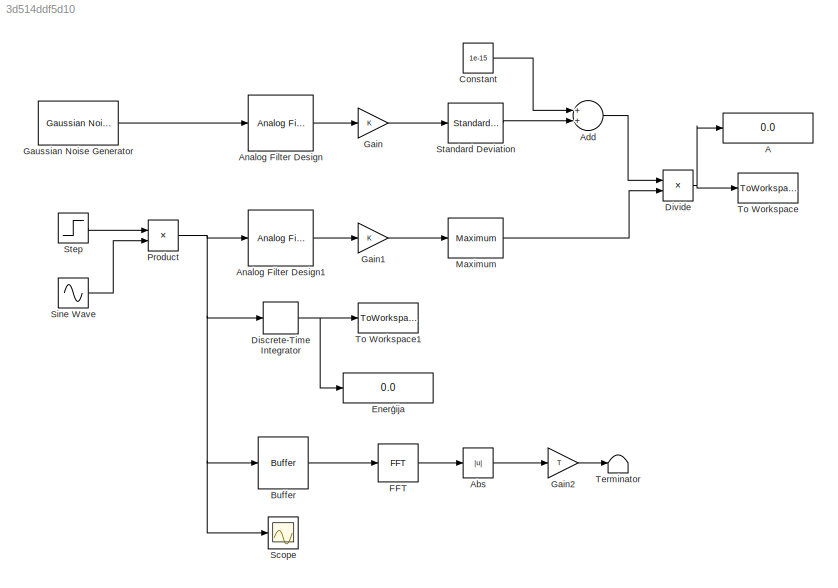
MODEL slx_3d514ddf5d10
KIND model
BLOCK [Display] A
  Decimation = 1
  Ports = [1]
BLOCK [Abs] Abs
  SaturateOnIntegerOverflow = off
BLOCK [Sum] Add
  InputSameDT = off
  OutDataTypeStr = Inherit: Inherit via internal rule
  Ports = [2, 1]
  SaturateOnIntegerOverflow = off
BLOCK [Reference] Analog Filter Design  REF=dsparch4/Analog
Filter Design
  N = 1
  Ports = [1, 1]
  Rp = 2
  Rs = 40
  SourceBlock = dsparch4/Analog\nFilter Design
  SourceType = Analog Filter Design
  Whi = 80
  Wlo = 2.63632
  filttype = Lowpass
  method = Butterworth
BLOCK [Reference] Analog Filter Design1  REF=dsparch4/Analog
Filter Design
  N = 1
  Ports = [1, 1]
  Rp = 2
  Rs = 40
  SourceBlock = dsparch4/Analog\nFilter Design
  SourceType = Analog Filter Design
  Whi = 80
  Wlo = 2.63632
  filttype = Lowpass
  method = Butterworth
BLOCK [Buffer] Buffer
  N = samples
  TreatMby1Signals = One channel
BLOCK [Constant] Constant
  SampleTime = dt
  Value = 1e-15
BLOCK [DiscreteIntegrator] Discrete-Time Integrator
  InitialConditionSetting = State (most efficient)
  Ports = [1, 1]
  SampleTime = dt
BLOCK [Product] Divide
  InputSameDT = off
  Inputs = /*
  OutDataTypeStr = Inherit: Inherit via internal rule
  Ports = [2, 1]
  RndMeth = Floor
  SaturateOnIntegerOverflow = off
BLOCK [Display] Enerģija
  Decimation = 1
  Ports = [1]
BLOCK [Reference] FFT  REF=dspxfrm3/FFT
  BitRevOrder = off
  CompMethod = Table lookup
  FFTImplementation = Auto
  FFTLength = samples
  InheritFFTLength = off
  LockScale = off
  Ports = [1, 1]
  RowConvenienceOn = on
  SkipNorm = on
  SourceBlock = dspxfrm3/FFT
  SourceType = FFT
  TableOpt = NEW
  TableOptActive = Speed
  WrapInput = on
  accumDataTypeStr = Inherit: Inherit via internal rule
  accumFracLength = 30
  accumLastDataTypeStr = Inherit: Inherit via internal rule
  accumMode = Inherit via internal rule
  accumWordLength = 32
  additionalParams = off
  allowOverrides = on
  firstCoeffDataTypeStr = Inherit: Same word length as input
  firstCoeffFracLength = 15
  firstCoeffLastDataTypeStr = Inherit: Same word length as input
  firstCoeffMode = Same word length as input
  firstCoeffWordLength = 16
  outputDataTypeStr = Inherit: Inherit via internal rule
  outputFracLength = 15
  outputLastDataTypeStr = Inherit: Inherit via internal rule
  outputMax = []
  outputMin = []
  outputMode = Inherit via internal rule
  outputWordLength = 16
  overflowMode = off
  prodOutputDataTypeStr = Inherit: Inherit via internal rule
  prodOutputFracLength = 30
  prodOutputLastDataTypeStr = Inherit: Inherit via internal rule
  prodOutputMode = Inherit via internal rule
  prodOutputWordLength = 32
  roundingMode = Floor
BLOCK [Gain] Gain
  OutDataTypeStr = Inherit: Inherit via internal rule
  ParamDataTypeStr = Inherit: Inherit via internal rule
  SampleTime = dt
  SaturateOnIntegerOverflow = off
BLOCK [Gain] Gain1
  OutDataTypeStr = Inherit: Inherit via internal rule
  ParamDataTypeStr = Inherit: Inherit via internal rule
  SampleTime = dt
  SaturateOnIntegerOverflow = off
BLOCK [Gain] Gain2
  Gain = T
  OutDataTypeStr = Inherit: Inherit via internal rule
  ParamDataTypeStr = Inherit: Inherit via internal rule
  SaturateOnIntegerOverflow = off
BLOCK [Reference] Gaussian Noise Generator  REF=commnoisgen2/Gaussian Noise
Generator
  Ports = [0, 1]
  SourceBlock = commnoisgen2/Gaussian Noise\nGenerator
  SourceType = Gaussian Noise Generator
  Ts = dt
  d = sigma2x
  frameBased = off
  m = 0
  orient = off
  outDataType = double
  s = seed
  sampPerFrame = 1
BLOCK [Reference] Maximum  REF=dspstat3/Maximum
  Dimension = 1
  InputProcessing = Elements as channels (sample based)
  LockScale = off
  Ports = [1, 1]
  SourceBlock = dspstat3/Maximum
  SourceType = Maximum
  UserDataPersistent = on
  accumDataTypeStr = Inherit: Same as product output
  accumFracLength = 30
  accumLastDataTypeStr = Inherit: Same as product output
  accumMode = Same as product output
  accumWordLength = 32
  additionalParams = off
  allowOverrides = on
  colComp = on
  fcn = Running
  indexBase = One
  operateOver = Entire input
  operation = maximum
  overflowMode = off
  prodOutputDataTypeStr = Inherit: Same as input
  prodOutputFracLength = 30
  prodOutputLastDataTypeStr = Inherit: Same as input
  prodOutputMode = Same as input
  prodOutputWordLength = 32
  reset = None
  roiEnable = off
  roiFlag = off
  roiOutput = Individual statistics for each ROI
  roiPortion = Entire ROI
  roiType = Rectangles
  roundingMode = Floor
BLOCK [Product] Product
  InputSameDT = off
  OutDataTypeStr = Inherit: Inherit via internal rule
  Ports = [2, 1]
  RndMeth = Floor
  SaturateOnIntegerOverflow = off
BLOCK [Scope] Scope
  Floating = off
  NumInputPorts = 1
  Ports = [1]
  ShowLegends = off
  ZoomMode = xonly
BLOCK [Sin] Sine Wave
  Frequency = pi/tau
  Ports = [0, 1]
  SampleTime = dt
BLOCK [Reference] Standard Deviation  REF=dspstat3/Standard
Deviation
  InputProcessing = Elements as channels (sample based)
  Ports = [1, 1]
  SourceBlock = dspstat3/Standard\nDeviation
  SourceType = Standard Deviation
  UserDataPersistent = on
  dimension = 1
  directionMode = Each column
  reset_popup = None
  roiEnable = off
  roiFlag = off
  roiOutput = Individual statistics for each ROI
  roiPortion = Entire ROI
  roiType = Rectangles
  run = on
  treatSBRowAsCol = on
BLOCK [Step] Step
  After = 0
  Before = 1
  SampleTime = dt
  Time = tau
BLOCK [Terminator] Terminator
BLOCK [ToWorkspace] To Workspace
  FixptAsFi = on
  MaxDataPoints = 1
  Ports = [1]
  SampleTime = dt
  Save2DSignal = 2-D array (concatenate along first dimension)
  VariableName = Asim
BLOCK [ToWorkspace] To Workspace1
  FixptAsFi = on
  MaxDataPoints = 1
  Ports = [1]
  SampleTime = dt
  Save2DSignal = 2-D array (concatenate along first dimension)
  VariableName = E0
LINE Abs:1 -> Gain2:1
LINE Add:1 -> Divide:1
LINE Analog Filter Design1:1 -> Gain1:1
LINE Analog Filter Design:1 -> Gain:1
LINE Buffer:1 -> FFT:1
LINE Constant:1 -> Add:1
NET Discrete-Time Integrator:1 -> Enerģija:1, To Workspace1:1
NET Divide:1 -> A:1, To Workspace:1
LINE FFT:1 -> Abs:1
LINE Gain1:1 -> Maximum:1
LINE Gain2:1 -> Terminator:1
LINE Gain:1 -> Standard Deviation:1
LINE Gaussian Noise Generator:1 -> Analog Filter Design:1
LINE Maximum:1 -> Divide:2
NET Product:1 -> Analog Filter Design1:1, Buffer:1, Discrete-Time Integrator:1, Scope:1
LINE Sine Wave:1 -> Product:2
LINE Standard Deviation:1 -> Add:2
LINE Step:1 -> Product:1
note: NET lines group one-source signal fan-out (src -> all destinations, sorted); 1:1 wires keep LINE
